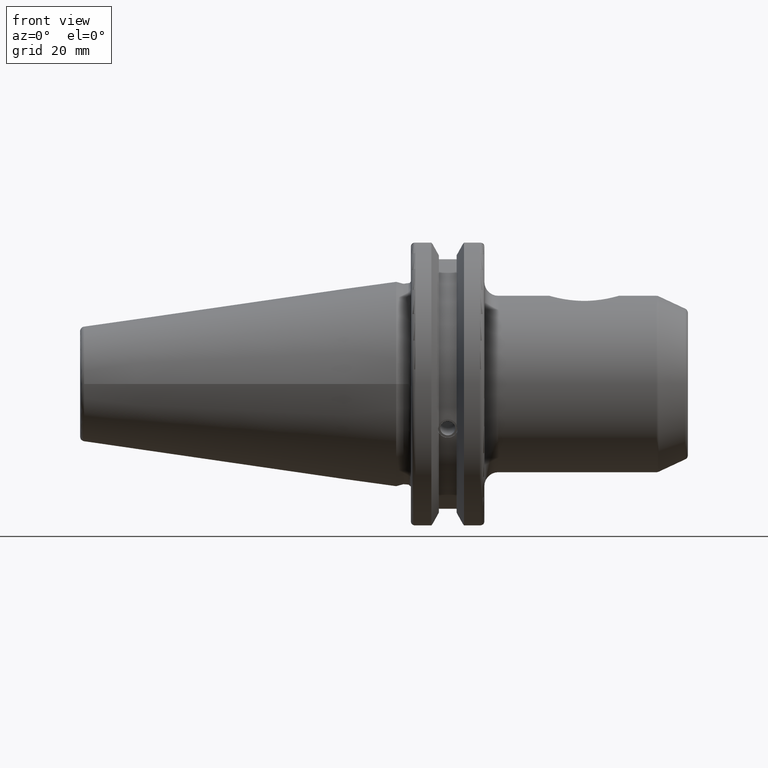
[diagram: clean part render]
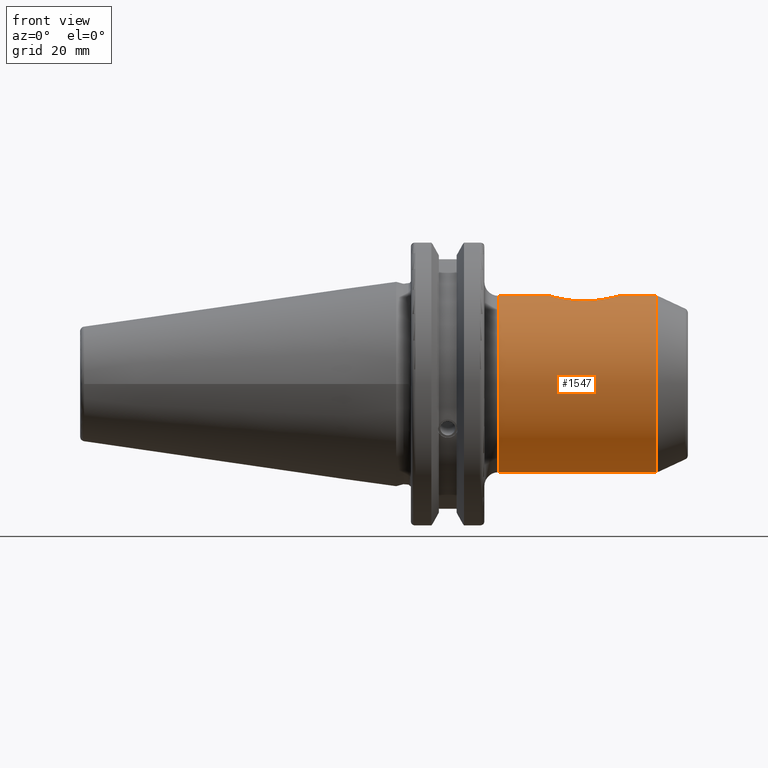
[diagram: same view with one face highlighted and labeled with its STEP entity id]
A machine part, front view. The second image highlights one B-rep face of the part: STEP entity #1547.
In plain terms, the highlighted cylindrical surface (bore or boss wall) has radius 19.05 mm, axis along (-1, 0, 0).
Its self-contained STEP definition (entity closure, byte-faithful):
#44=FACE_BOUND('',#290,.T.);
#101=B_SPLINE_CURVE_WITH_KNOTS('',3,(#2365,#2366,#2367,#2368,#2369,#2370,
#2371,#2372,#2373,#2374),.UNSPECIFIED.,.F.,.F.,(4,2,2,2,4),(0.,0.258729995233859,
0.517459990467718,0.786848665459809,1.0562373404519),.UNSPECIFIED.);
#102=B_SPLINE_CURVE_WITH_KNOTS('',3,(#2375,#2376,#2377,#2378,#2379,#2380,
#2381,#2382,#2383,#2384,#2385,#2386,#2387,#2388,#2389,#2390,#2391,#2392,
#2393,#2394,#2395,#2396,#2397,#2398,#2399,#2400),.UNSPECIFIED.,.F.,.F.,
(4,2,2,2,2,2,2,2,2,2,2,2,4),(1.0562373404519,1.32562601544399,1.59501469043608,
1.85374468566994,2.1124746809038,2.37120467613766,2.62993467137152,2.89932334636361,
3.1687120213557,3.43810069634779,3.70748937133988,3.96621936657374,4.2249493618076),
 .UNSPECIFIED.);
#156=CYLINDRICAL_SURFACE('',#1674,19.05);
#194=FACE_OUTER_BOUND('',#289,.T.);
#289=EDGE_LOOP('',(#1088,#1089,#1090,#1091));
#290=EDGE_LOOP('',(#1092,#1093));
#393=LINE('',#2421,#489);
#489=VECTOR('',#1894,19.05);
#587=CIRCLE('',#1672,19.05);
#589=CIRCLE('',#1675,19.05);
#660=VERTEX_POINT('',#2362);
#661=VERTEX_POINT('',#2364);
#666=VERTEX_POINT('',#2415);
#667=VERTEX_POINT('',#2419);
#822=EDGE_CURVE('',#661,#660,#101,.T.);
#823=EDGE_CURVE('',#660,#661,#102,.T.);
#830=EDGE_CURVE('',#666,#666,#587,.T.);
#832=EDGE_CURVE('',#667,#667,#589,.T.);
#833=EDGE_CURVE('',#667,#666,#393,.T.);
#1088=ORIENTED_EDGE('',*,*,#832,.F.);
#1089=ORIENTED_EDGE('',*,*,#833,.T.);
#1090=ORIENTED_EDGE('',*,*,#830,.F.);
#1091=ORIENTED_EDGE('',*,*,#833,.F.);
#1092=ORIENTED_EDGE('',*,*,#822,.T.);
#1093=ORIENTED_EDGE('',*,*,#823,.T.);
#1547=ADVANCED_FACE('',(#194,#44),#156,.T.);
#1672=AXIS2_PLACEMENT_3D('',#2416,#1886,#1887);
#1674=AXIS2_PLACEMENT_3D('',#2418,#1890,#1891);
#1675=AXIS2_PLACEMENT_3D('',#2420,#1892,#1893);
#1886=DIRECTION('center_axis',(1.,0.,0.));
#1887=DIRECTION('ref_axis',(0.,1.22464679914735E-16,-1.));
#1890=DIRECTION('center_axis',(-1.,0.,0.));
#1891=DIRECTION('ref_axis',(0.,0.,1.));
#1892=DIRECTION('center_axis',(-1.,0.,0.));
#1893=DIRECTION('ref_axis',(0.,1.22464679914735E-16,-1.));
#1894=DIRECTION('',(1.,0.,0.));
#2362=CARTESIAN_POINT('',(33.1,-9.18485099360513E-16,19.05));
#2364=CARTESIAN_POINT('',(40.6,-6.39466001990194,17.944660019902));
#2365=CARTESIAN_POINT('Ctrl Pts',(40.6,-6.39466001990194,17.944660019902));
#2366=CARTESIAN_POINT('Ctrl Pts',(39.7375666825538,-6.39466001990194,17.944660019902));
#2367=CARTESIAN_POINT('Ctrl Pts',(38.8091000267865,-6.25848866222517,17.9951302384707));
#2368=CARTESIAN_POINT('Ctrl Pts',(37.0617892724183,-5.68590571922336,18.1841655377129));
#2369=CARTESIAN_POINT('Ctrl Pts',(36.2426398581962,-5.24963032694659,18.3203131416286));
#2370=CARTESIAN_POINT('Ctrl Pts',(34.867596059412,-4.1848192047633,18.5931214613171));
#2371=CARTESIAN_POINT('Ctrl Pts',(34.2225499636105,-3.46783491366051,18.7500533091295));
#2372=CARTESIAN_POINT('Ctrl Pts',(33.3378994083389,-1.82514501489219,18.980496163095));
#2373=CARTESIAN_POINT('Ctrl Pts',(33.1,-0.897962249973639,19.05));
#2374=CARTESIAN_POINT('Ctrl Pts',(33.1,-1.2490009027033E-15,19.05));
#2375=CARTESIAN_POINT('Ctrl Pts',(33.1,-6.93889390390723E-16,19.05));
#2376=CARTESIAN_POINT('Ctrl Pts',(33.1,0.897962249973637,19.05));
#2377=CARTESIAN_POINT('Ctrl Pts',(33.3378994083389,1.82514501489219,18.980496163095));
#2378=CARTESIAN_POINT('Ctrl Pts',(34.2225499636105,3.46783491366051,18.7500533091295));
#2379=CARTESIAN_POINT('Ctrl Pts',(34.867596059412,4.1848192047633,18.5931214613171));
#2380=CARTESIAN_POINT('Ctrl Pts',(36.2426398581962,5.24963032694659,18.3203131416286));
#2381=CARTESIAN_POINT('Ctrl Pts',(37.0617892724183,5.68590571922336,18.1841655377129));
#2382=CARTESIAN_POINT('Ctrl Pts',(38.8091000267865,6.25848866222516,17.9951302384707));
#2383=CARTESIAN_POINT('Ctrl Pts',(39.7375666825538,6.39466001990194,17.944660019902));
#2384=CARTESIAN_POINT('Ctrl Pts',(41.4624333174462,6.39466001990194,17.944660019902));
#2385=CARTESIAN_POINT('Ctrl Pts',(42.3908999732136,6.25848866222517,17.9951302384707));
#2386=CARTESIAN_POINT('Ctrl Pts',(44.1382107275817,5.68590571922337,18.1841655377129));
#2387=CARTESIAN_POINT('Ctrl Pts',(44.9573601418038,5.24963032694659,18.3203131416286));
#2388=CARTESIAN_POINT('Ctrl Pts',(46.332403940588,4.1848192047633,18.5931214613171));
#2389=CARTESIAN_POINT('Ctrl Pts',(46.9774500363895,3.46783491366051,18.7500533091295));
#2390=CARTESIAN_POINT('Ctrl Pts',(47.8621005916612,1.82514501489219,18.980496163095));
#2391=CARTESIAN_POINT('Ctrl Pts',(48.1,0.89796224997364,19.05));
#2392=CARTESIAN_POINT('Ctrl Pts',(48.1,-0.897962249973636,19.05));
#2393=CARTESIAN_POINT('Ctrl Pts',(47.8621005916612,-1.82514501489219,18.9804961630951));
#2394=CARTESIAN_POINT('Ctrl Pts',(46.9774500363895,-3.46783491366051,18.7500533091295));
#2395=CARTESIAN_POINT('Ctrl Pts',(46.332403940588,-4.1848192047633,18.5931214613171));
#2396=CARTESIAN_POINT('Ctrl Pts',(44.9573601418038,-5.24963032694659,18.3203131416286));
#2397=CARTESIAN_POINT('Ctrl Pts',(44.1382107275817,-5.68590571922337,18.1841655377129));
#2398=CARTESIAN_POINT('Ctrl Pts',(42.3908999732136,-6.25848866222517,17.9951302384707));
#2399=CARTESIAN_POINT('Ctrl Pts',(41.4624333174462,-6.39466001990194,17.944660019902));
#2400=CARTESIAN_POINT('Ctrl Pts',(40.6,-6.39466001990194,17.944660019902));
#2415=CARTESIAN_POINT('',(56.2375592298029,-2.33295215237571E-15,-19.05));
#2416=CARTESIAN_POINT('Origin',(56.2375592298029,0.,0.));
#2418=CARTESIAN_POINT('Origin',(37.7546269462229,0.,0.));
#2419=CARTESIAN_POINT('',(22.05,-2.33295215237571E-15,-19.05));
#2420=CARTESIAN_POINT('Origin',(22.05,0.,0.));
#2421=CARTESIAN_POINT('',(37.7546269462229,-2.33295215237571E-15,-19.05));